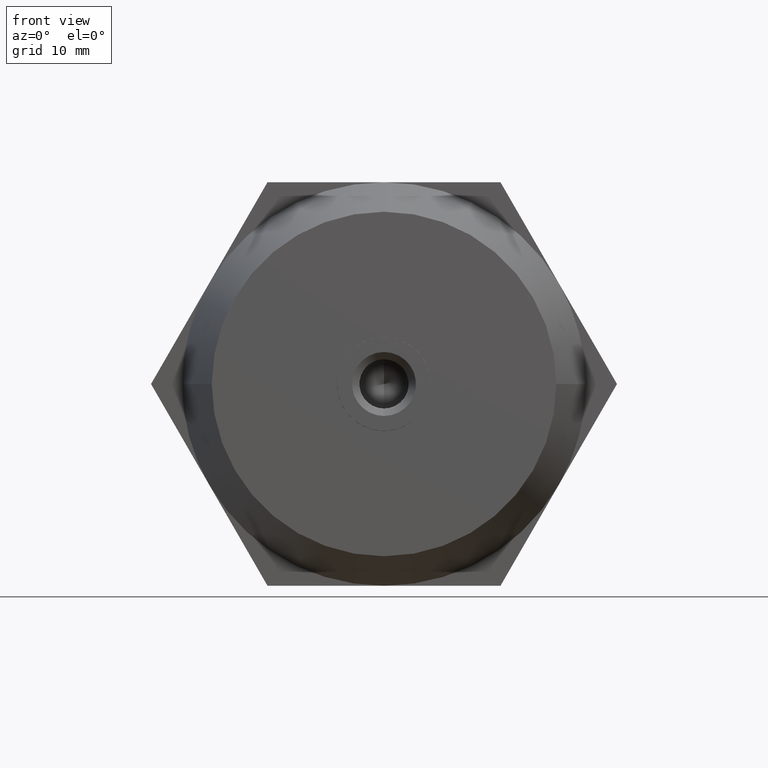
[diagram: clean part render]
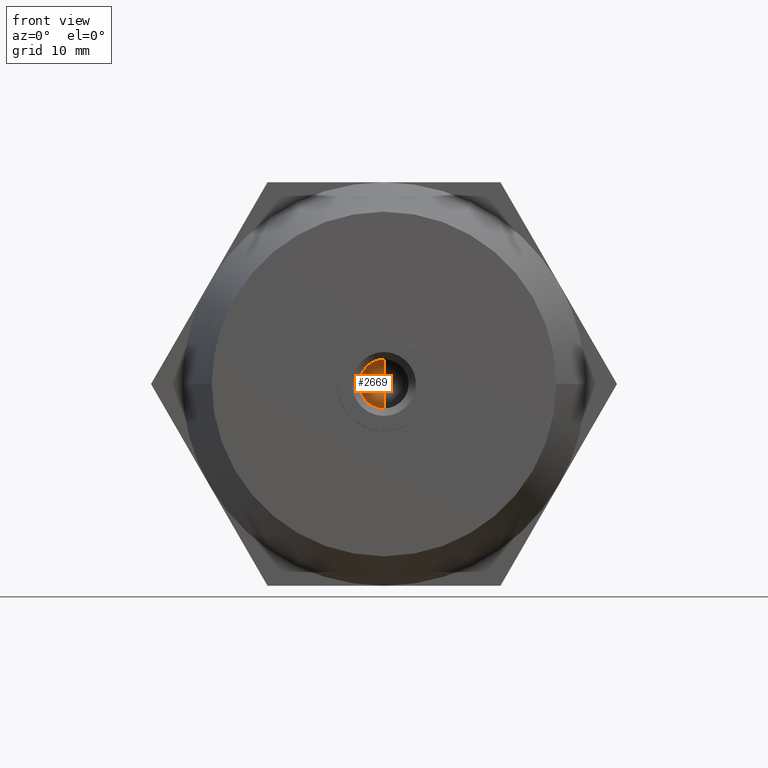
[diagram: same view with one face highlighted and labeled with its STEP entity id]
A machine part, front view. The second image highlights one B-rep face of the part: STEP entity #2669.
In plain terms, the highlighted conical surface has half-angle 59 deg.
Its self-contained STEP definition (entity closure, byte-faithful):
#185 = AXIS2_PLACEMENT_3D ( 'NONE', #2899, #1423, #2882 ) ;
#200 = VECTOR ( 'NONE', #1246, 999.9999999999998900 ) ;
#347 = LINE ( 'NONE', #3370, #3578 ) ;
#944 = AXIS2_PLACEMENT_3D ( 'NONE', #2112, #2293, #2317 ) ;
#976 = VERTEX_POINT ( 'NONE', #2077 ) ;
#988 = CIRCLE ( 'NONE', #944, 2.500000000000000000 ) ;
#1246 = DIRECTION ( 'NONE',  ( 0.0000000000000000000, 0.5150380749100549300, 0.8571673007021118900 ) ) ;
#1423 = DIRECTION ( 'NONE',  ( 0.0000000000000000000, 1.000000000000000000, 0.0000000000000000000 ) ) ;
#1453 = LINE ( 'NONE', #3594, #200 ) ;
#1484 = CARTESIAN_POINT ( 'NONE',  ( 0.0000000000000000000, 2.000000000000000000, 2.500000000000000000 ) ) ;
#1512 = VERTEX_POINT ( 'NONE', #2902 ) ;
#1584 = DIRECTION ( 'NONE',  ( 1.049727191138618200E-016, 0.5150380749100549300, -0.8571673007021118900 ) ) ;
#1684 = FACE_OUTER_BOUND ( 'NONE', #3270, .T. ) ;
#1712 = VERTEX_POINT ( 'NONE', #1484 ) ;
#1792 = EDGE_CURVE ( 'NONE', #976, #1712, #1453, .T. ) ;
#2077 = CARTESIAN_POINT ( 'NONE',  ( -1.837497175889724800E-015, 0.4978484524310979900, 0.0000000000000000000 ) ) ;
#2112 = CARTESIAN_POINT ( 'NONE',  ( 0.0000000000000000000, 2.000000000000000000, 0.0000000000000000000 ) ) ;
#2135 = ORIENTED_EDGE ( 'NONE', *, *, #2499, .T. ) ;
#2293 = DIRECTION ( 'NONE',  ( 0.0000000000000000000, 1.000000000000000000, 0.0000000000000000000 ) ) ;
#2317 = DIRECTION ( 'NONE',  ( 0.0000000000000000000, 0.0000000000000000000, 1.000000000000000000 ) ) ;
#2435 = CONICAL_SURFACE ( 'NONE', #185, 2.500000000000000000, 1.029744258676653600 ) ;
#2499 = EDGE_CURVE ( 'NONE', #976, #1512, #347, .T. ) ;
#2661 = ORIENTED_EDGE ( 'NONE', *, *, #3021, .T. ) ;
#2669 = ADVANCED_FACE ( 'NONE', ( #1684 ), #2435, .F. ) ;
#2882 = DIRECTION ( 'NONE',  ( 0.0000000000000000000, 0.0000000000000000000, 1.000000000000000000 ) ) ;
#2899 = CARTESIAN_POINT ( 'NONE',  ( 0.0000000000000000000, 2.000000000000000000, 0.0000000000000000000 ) ) ;
#2902 = CARTESIAN_POINT ( 'NONE',  ( 3.061616997868383100E-016, 2.000000000000000000, -2.500000000000000000 ) ) ;
#3021 = EDGE_CURVE ( 'NONE', #1512, #1712, #988, .T. ) ;
#3270 = EDGE_LOOP ( 'NONE', ( #3773, #2135, #2661 ) ) ;
#3370 = CARTESIAN_POINT ( 'NONE',  ( 3.061616997868383100E-016, 2.000000000000000000, -2.500000000000000000 ) ) ;
#3578 = VECTOR ( 'NONE', #1584, 999.9999999999998900 ) ;
#3594 = CARTESIAN_POINT ( 'NONE',  ( 0.0000000000000000000, 2.000000000000000000, 2.500000000000000000 ) ) ;
#3773 = ORIENTED_EDGE ( 'NONE', *, *, #1792, .F. ) ;